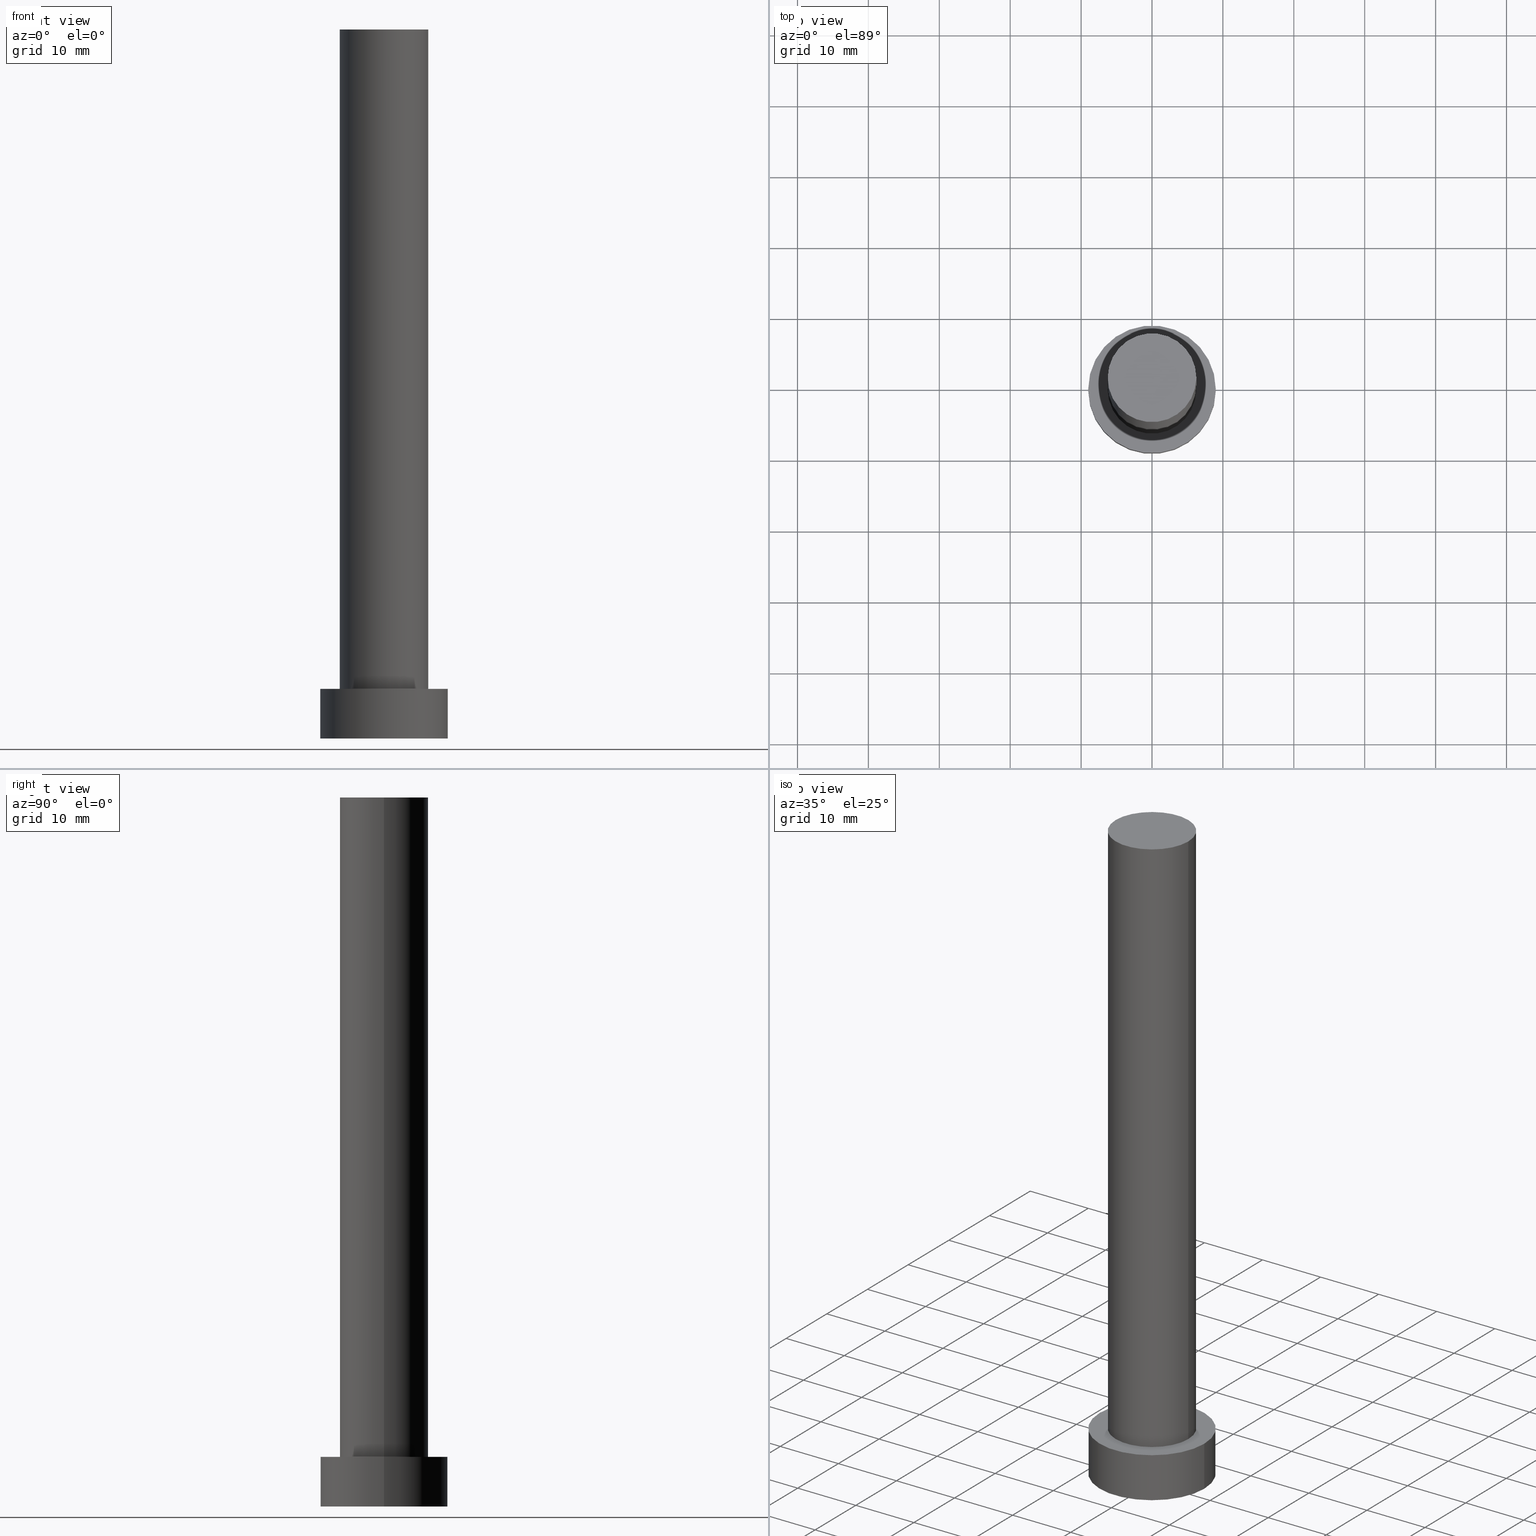
[diagram: canonical four-view strip — front | top / right | iso, engineering-drawing reading convention]
A machine part, canonical four-view strip (front | top / right | iso — engineering-drawing reading convention). The complete STEP part file that produces these views, byte-faithful:
ISO-10303-21;
HEADER;
FILE_DESCRIPTION (( 'STEP AP203' ),
    '1' );
FILE_NAME ('fa70.STEP',
    '2026-02-06T12:36:46',
    ( '' ),
    ( '' ),
    'SwSTEP 2.0',
    'SolidWorks 2019',
    '' );
FILE_SCHEMA (( 'CONFIG_CONTROL_DESIGN' ));
ENDSEC;

DATA;
#1 = PRODUCT_DEFINITION ( 'NEZN�M�', '', #123, #157 ) ;
#2 = LINE ( 'NONE', #50, #232 ) ;
#3 = PLANE ( 'NONE',  #205 ) ;
#4 = AXIS2_PLACEMENT_3D ( 'NONE', #80, #95, #75 ) ;
#5 = CLOSED_SHELL ( 'NONE', ( #77, #118, #25, #199, #188, #167, #101 ) ) ;
#6 = PERSON_AND_ORGANIZATION_ROLE ( 'design_owner' ) ;
#7 = PERSON_AND_ORGANIZATION ( #182, #223 ) ;
#8 = DIRECTION ( 'NONE',  ( -0.000000000000000000, -0.000000000000000000, -1.000000000000000000 ) ) ;
#9 = CYLINDRICAL_SURFACE ( 'NONE', #138, 9.000000000000000000 ) ;
#10 = APPLICATION_CONTEXT ( 'configuration controlled 3d designs of mechanical parts and assemblies' ) ;
#11 = APPROVAL_STATUS ( 'not_yet_approved' ) ;
#12 = PRODUCT ( 'fa70', 'fa70', '', ( #62 ) ) ;
#13 = ORIENTED_EDGE ( 'NONE', *, *, #15, .T. ) ;
#14 = EDGE_LOOP ( 'NONE', ( #81, #214 ) ) ;
#15 = EDGE_CURVE ( 'NONE', #245, #35, #69, .T. ) ;
#16 = CARTESIAN_POINT ( 'NONE',  ( -9.000000000000000000, 0.000000000000000000, 0.000000000000000000 ) ) ;
#17 = EDGE_LOOP ( 'NONE', ( #115, #13, #229, #135 ) ) ;
#18 = ORIENTED_EDGE ( 'NONE', *, *, #230, .F. ) ;
#19 = APPROVAL_PERSON_ORGANIZATION ( #226, #195, #227 ) ;
#20 = DIRECTION ( 'NONE',  ( 0.000000000000000000, 0.000000000000000000, 1.000000000000000000 ) ) ;
#21 = CARTESIAN_POINT ( 'NONE',  ( 0.000000000000000000, 0.000000000000000000, 7.000000000000000000 ) ) ;
#22 = APPLICATION_CONTEXT ( 'configuration controlled 3d designs of mechanical parts and assemblies' ) ;
#23 = DIRECTION ( 'NONE',  ( -0.000000000000000000, -0.000000000000000000, -1.000000000000000000 ) ) ;
#24 = DATE_AND_TIME ( #240, #191 ) ;
#25 = ADVANCED_FACE ( 'NONE', ( #110 ), #9, .T. ) ;
#26 = AXIS2_PLACEMENT_3D ( 'NONE', #234, #233, #159 ) ;
#27 = CARTESIAN_POINT ( 'NONE',  ( -6.250000000000000000, 0.000000000000000000, 100.0000000000000000 ) ) ;
#28 = PERSON_AND_ORGANIZATION ( #182, #223 ) ;
#29 =( GEOMETRIC_REPRESENTATION_CONTEXT ( 3 ) GLOBAL_UNCERTAINTY_ASSIGNED_CONTEXT ( ( #242 ) ) GLOBAL_UNIT_ASSIGNED_CONTEXT ( ( #222, #184, #79 ) ) REPRESENTATION_CONTEXT ( 'NONE', 'WORKASPACE' ) );
#30 = AXIS2_PLACEMENT_3D ( 'NONE', #255, #45, #231 ) ;
#31 = VECTOR ( 'NONE', #49, 1000.000000000000000 ) ;
#32 = ORIENTED_EDGE ( 'NONE', *, *, #82, .F. ) ;
#33 = APPLICATION_PROTOCOL_DEFINITION ( 'international standard', 'config_control_design', 1994, #10 ) ;
#34 = LOCAL_TIME ( 13, 36, 46.00000000000000000, #152 ) ;
#35 = VERTEX_POINT ( 'NONE', #104 ) ;
#36 = EDGE_CURVE ( 'NONE', #190, #245, #103, .T. ) ;
#37 = DIRECTION ( 'NONE',  ( 0.000000000000000000, 0.000000000000000000, 1.000000000000000000 ) ) ;
#38 = CARTESIAN_POINT ( 'NONE',  ( 0.000000000000000000, 0.000000000000000000, 0.000000000000000000 ) ) ;
#39 = CC_DESIGN_APPROVAL ( #106, ( #1 ) ) ;
#40 = AXIS2_PLACEMENT_3D ( 'NONE', #21, #140, #86 ) ;
#41 = DIRECTION ( 'NONE',  ( -1.000000000000000000, 0.000000000000000000, 0.000000000000000000 ) ) ;
#42 = EDGE_CURVE ( 'NONE', #251, #35, #99, .T. ) ;
#43 = CC_DESIGN_SECURITY_CLASSIFICATION ( #66, ( #123 ) ) ;
#44 = AXIS2_PLACEMENT_3D ( 'NONE', #88, #47, #121 ) ;
#45 = DIRECTION ( 'NONE',  ( -0.000000000000000000, -0.000000000000000000, -1.000000000000000000 ) ) ;
#46 = CARTESIAN_POINT ( 'NONE',  ( 6.250000000000000000, 7.654042494670955634E-16, 100.0000000000000000 ) ) ;
#47 = DIRECTION ( 'NONE',  ( 0.000000000000000000, 0.000000000000000000, 1.000000000000000000 ) ) ;
#48 = DIRECTION ( 'NONE',  ( 0.000000000000000000, 0.000000000000000000, 1.000000000000000000 ) ) ;
#49 = DIRECTION ( 'NONE',  ( -0.000000000000000000, -0.000000000000000000, -1.000000000000000000 ) ) ;
#50 = CARTESIAN_POINT ( 'NONE',  ( -6.250000000000000000, 0.000000000000000000, 100.0000000000000000 ) ) ;
#51 = PERSON_AND_ORGANIZATION ( #182, #223 ) ;
#52 = DIRECTION ( 'NONE',  ( -0.000000000000000000, -0.000000000000000000, -1.000000000000000000 ) ) ;
#53 = APPROVAL_ROLE ( '' ) ;
#54 = CYLINDRICAL_SURFACE ( 'NONE', #196, 6.250000000000000000 ) ;
#55 = EDGE_CURVE ( 'NONE', #125, #178, #65, .T. ) ;
#56 = SHAPE_DEFINITION_REPRESENTATION ( #187, #247 ) ;
#57 = LOCAL_TIME ( 13, 36, 46.00000000000000000, #203 ) ;
#58 = AXIS2_PLACEMENT_3D ( 'NONE', #59, #61, #133 ) ;
#59 = CARTESIAN_POINT ( 'NONE',  ( 0.000000000000000000, 0.000000000000000000, 7.000000000000000000 ) ) ;
#60 = EDGE_LOOP ( 'NONE', ( #194, #173, #129, #63 ) ) ;
#61 = DIRECTION ( 'NONE',  ( 0.000000000000000000, 0.000000000000000000, 1.000000000000000000 ) ) ;
#62 = MECHANICAL_CONTEXT ( 'NONE', #10, 'mechanical' ) ;
#63 = ORIENTED_EDGE ( 'NONE', *, *, #82, .T. ) ;
#64 = ORIENTED_EDGE ( 'NONE', *, *, #42, .T. ) ;
#65 = CIRCLE ( 'NONE', #78, 9.000000000000000000 ) ;
#66 = SECURITY_CLASSIFICATION ( '', '', #112 ) ;
#67 = DIRECTION ( 'NONE',  ( 1.000000000000000000, 0.000000000000000000, -0.000000000000000000 ) ) ;
#68 = CALENDAR_DATE ( 2026, 6, 2 ) ;
#69 = LINE ( 'NONE', #185, #248 ) ;
#70 = PERSON_AND_ORGANIZATION_ROLE ( 'classification_officer' ) ;
#71 = CARTESIAN_POINT ( 'NONE',  ( 0.000000000000000000, 0.000000000000000000, 7.000000000000000000 ) ) ;
#72 = APPROVAL_DATE_TIME ( #149, #106 ) ;
#73 = DATE_AND_TIME ( #109, #146 ) ;
#74 = PRODUCT_RELATED_PRODUCT_CATEGORY ( 'detail', '', ( #12 ) ) ;
#75 = DIRECTION ( 'NONE',  ( 1.000000000000000000, 0.000000000000000000, -0.000000000000000000 ) ) ;
#76 = VERTEX_POINT ( 'NONE', #139 ) ;
#77 = ADVANCED_FACE ( 'NONE', ( #254 ), #119, .T. ) ;
#78 = AXIS2_PLACEMENT_3D ( 'NONE', #144, #160, #201 ) ;
#79 =( NAMED_UNIT ( * ) SI_UNIT ( $, .STERADIAN. ) SOLID_ANGLE_UNIT ( ) );
#80 = CARTESIAN_POINT ( 'NONE',  ( 0.000000000000000000, 0.000000000000000000, 7.000000000000000000 ) ) ;
#81 = ORIENTED_EDGE ( 'NONE', *, *, #42, .F. ) ;
#82 = EDGE_CURVE ( 'NONE', #212, #76, #165, .T. ) ;
#83 = VECTOR ( 'NONE', #145, 1000.000000000000000 ) ;
#84 = EDGE_LOOP ( 'NONE', ( #32, #96 ) ) ;
#85 = CARTESIAN_POINT ( 'NONE',  ( 0.000000000000000000, 0.000000000000000000, 100.0000000000000000 ) ) ;
#86 = DIRECTION ( 'NONE',  ( 1.000000000000000000, 0.000000000000000000, 0.000000000000000000 ) ) ;
#87 = APPROVAL_PERSON_ORGANIZATION ( #150, #117, #53 ) ;
#88 = CARTESIAN_POINT ( 'NONE',  ( 0.000000000000000000, 0.000000000000000000, 100.0000000000000000 ) ) ;
#89 = DATE_AND_TIME ( #68, #57 ) ;
#90 = DIRECTION ( 'NONE',  ( -1.000000000000000000, 0.000000000000000000, 0.000000000000000000 ) ) ;
#91 = APPLICATION_PROTOCOL_DEFINITION ( 'international standard', 'config_control_design', 1994, #22 ) ;
#92 = CARTESIAN_POINT ( 'NONE',  ( 0.000000000000000000, 0.000000000000000000, 100.0000000000000000 ) ) ;
#93 = APPROVAL_STATUS ( 'not_yet_approved' ) ;
#94 = DATE_TIME_ROLE ( 'classification_date' ) ;
#95 = DIRECTION ( 'NONE',  ( 0.000000000000000000, 0.000000000000000000, 1.000000000000000000 ) ) ;
#96 = ORIENTED_EDGE ( 'NONE', *, *, #122, .F. ) ;
#97 = EDGE_LOOP ( 'NONE', ( #155, #193 ) ) ;
#98 = CC_DESIGN_PERSON_AND_ORGANIZATION_ASSIGNMENT ( #51, #237, ( #123 ) ) ;
#99 = CIRCLE ( 'NONE', #40, 6.250000000000000000 ) ;
#100 = EDGE_LOOP ( 'NONE', ( #127, #174, #228, #18 ) ) ;
#101 = ADVANCED_FACE ( 'NONE', ( #108 ), #105, .T. ) ;
#102 = ORIENTED_EDGE ( 'NONE', *, *, #126, .T. ) ;
#103 = CIRCLE ( 'NONE', #26, 6.250000000000000000 ) ;
#104 = CARTESIAN_POINT ( 'NONE',  ( 6.250000000000000000, 7.654042494670955634E-16, 7.000000000000000000 ) ) ;
#105 = PLANE ( 'NONE',  #197 ) ;
#106 = APPROVAL ( #116, 'NEUR�EN�' ) ;
#107 = DIRECTION ( 'NONE',  ( 1.000000000000000000, 0.000000000000000000, 0.000000000000000000 ) ) ;
#108 = FACE_OUTER_BOUND ( 'NONE', #97, .T. ) ;
#109 = CALENDAR_DATE ( 2026, 6, 2 ) ;
#110 = FACE_OUTER_BOUND ( 'NONE', #60, .T. ) ;
#111 = EDGE_CURVE ( 'NONE', #245, #190, #158, .T. ) ;
#112 = SECURITY_CLASSIFICATION_LEVEL ( 'unclassified' ) ;
#113 = APPROVAL_DATE_TIME ( #73, #117 ) ;
#114 = ORIENTED_EDGE ( 'NONE', *, *, #15, .F. ) ;
#115 = ORIENTED_EDGE ( 'NONE', *, *, #111, .F. ) ;
#116 = APPROVAL_STATUS ( 'not_yet_approved' ) ;
#117 = APPROVAL ( #11, 'NEUR�EN�' ) ;
#118 = ADVANCED_FACE ( 'NONE', ( #166 ), #181, .T. ) ;
#119 = CYLINDRICAL_SURFACE ( 'NONE', #130, 6.250000000000000000 ) ;
#120 = DIRECTION ( 'NONE',  ( -1.000000000000000000, 0.000000000000000000, 0.000000000000000000 ) ) ;
#121 = DIRECTION ( 'NONE',  ( 1.000000000000000000, 0.000000000000000000, 0.000000000000000000 ) ) ;
#122 = EDGE_CURVE ( 'NONE', #76, #212, #142, .T. ) ;
#123 = PRODUCT_DEFINITION_FORMATION_WITH_SPECIFIED_SOURCE ( 'LIBOVOLN�', '', #12, .NOT_KNOWN. ) ;
#124 = DIRECTION ( 'NONE',  ( 0.000000000000000000, 0.000000000000000000, 1.000000000000000000 ) ) ;
#125 = VERTEX_POINT ( 'NONE', #164 ) ;
#126 = EDGE_CURVE ( 'NONE', #178, #125, #246, .T. ) ;
#127 = ORIENTED_EDGE ( 'NONE', *, *, #126, .F. ) ;
#128 = FACE_OUTER_BOUND ( 'NONE', #210, .T. ) ;
#129 = ORIENTED_EDGE ( 'NONE', *, *, #230, .T. ) ;
#130 = AXIS2_PLACEMENT_3D ( 'NONE', #217, #23, #120 ) ;
#131 = CARTESIAN_POINT ( 'NONE',  ( -9.000000000000000000, 0.000000000000000000, 7.000000000000000000 ) ) ;
#132 = EDGE_LOOP ( 'NONE', ( #249, #102 ) ) ;
#133 = DIRECTION ( 'NONE',  ( 1.000000000000000000, 0.000000000000000000, 0.000000000000000000 ) ) ;
#134 = ORIENTED_EDGE ( 'NONE', *, *, #36, .F. ) ;
#135 = ORIENTED_EDGE ( 'NONE', *, *, #161, .F. ) ;
#136 = PERSON_AND_ORGANIZATION ( #182, #223 ) ;
#137 = CC_DESIGN_PERSON_AND_ORGANIZATION_ASSIGNMENT ( #224, #206, ( #123 ) ) ;
#138 = AXIS2_PLACEMENT_3D ( 'NONE', #71, #221, #41 ) ;
#139 = CARTESIAN_POINT ( 'NONE',  ( 9.000000000000000000, 1.102182119232617714E-15, 0.000000000000000000 ) ) ;
#140 = DIRECTION ( 'NONE',  ( 0.000000000000000000, 0.000000000000000000, 1.000000000000000000 ) ) ;
#141 = AXIS2_PLACEMENT_3D ( 'NONE', #176, #37, #156 ) ;
#142 = CIRCLE ( 'NONE', #192, 9.000000000000000000 ) ;
#143 = AXIS2_PLACEMENT_3D ( 'NONE', #235, #48, #183 ) ;
#144 = CARTESIAN_POINT ( 'NONE',  ( 0.000000000000000000, 0.000000000000000000, 7.000000000000000000 ) ) ;
#145 = DIRECTION ( 'NONE',  ( -0.000000000000000000, -0.000000000000000000, -1.000000000000000000 ) ) ;
#146 = LOCAL_TIME ( 13, 36, 46.00000000000000000, #147 ) ;
#147 = COORDINATED_UNIVERSAL_TIME_OFFSET ( 1, 0, .AHEAD. ) ;
#148 = CARTESIAN_POINT ( 'NONE',  ( 9.000000000000000000, 1.102182119232617714E-15, 7.000000000000000000 ) ) ;
#149 = DATE_AND_TIME ( #215, #151 ) ;
#150 = PERSON_AND_ORGANIZATION ( #182, #223 ) ;
#151 = LOCAL_TIME ( 13, 36, 46.00000000000000000, #253 ) ;
#152 = COORDINATED_UNIVERSAL_TIME_OFFSET ( 1, 0, .AHEAD. ) ;
#153 = LINE ( 'NONE', #131, #31 ) ;
#154 = CIRCLE ( 'NONE', #58, 6.250000000000000000 ) ;
#155 = ORIENTED_EDGE ( 'NONE', *, *, #36, .T. ) ;
#156 = DIRECTION ( 'NONE',  ( 1.000000000000000000, 0.000000000000000000, 0.000000000000000000 ) ) ;
#157 = DESIGN_CONTEXT ( 'detailed design', #22, 'design' ) ;
#158 = CIRCLE ( 'NONE', #44, 6.250000000000000000 ) ;
#159 = DIRECTION ( 'NONE',  ( 1.000000000000000000, 0.000000000000000000, 0.000000000000000000 ) ) ;
#160 = DIRECTION ( 'NONE',  ( 0.000000000000000000, 0.000000000000000000, 1.000000000000000000 ) ) ;
#161 = EDGE_CURVE ( 'NONE', #190, #251, #2, .T. ) ;
#162 = MANIFOLD_SOLID_BREP ( 'P�idat vysunut�m3', #5 ) ;
#163 = DIRECTION ( 'NONE',  ( 0.000000000000000000, 0.000000000000000000, 1.000000000000000000 ) ) ;
#164 = CARTESIAN_POINT ( 'NONE',  ( -9.000000000000000000, 0.000000000000000000, 7.000000000000000000 ) ) ;
#165 = CIRCLE ( 'NONE', #236, 9.000000000000000000 ) ;
#166 = FACE_OUTER_BOUND ( 'NONE', #100, .T. ) ;
#167 = ADVANCED_FACE ( 'NONE', ( #128 ), #54, .T. ) ;
#168 = DATE_AND_TIME ( #209, #34 ) ;
#169 = CARTESIAN_POINT ( 'NONE',  ( 9.000000000000000000, 1.102182119232617714E-15, 7.000000000000000000 ) ) ;
#170 = CARTESIAN_POINT ( 'NONE',  ( 0.000000000000000000, 0.000000000000000000, 0.000000000000000000 ) ) ;
#171 = DATE_TIME_ROLE ( 'creation_date' ) ;
#172 = APPROVAL_DATE_TIME ( #24, #195 ) ;
#173 = ORIENTED_EDGE ( 'NONE', *, *, #55, .F. ) ;
#174 = ORIENTED_EDGE ( 'NONE', *, *, #243, .T. ) ;
#175 = APPROVAL_PERSON_ORGANIZATION ( #28, #106, #218 ) ;
#176 = CARTESIAN_POINT ( 'NONE',  ( 0.000000000000000000, 0.000000000000000000, 0.000000000000000000 ) ) ;
#177 = CC_DESIGN_DATE_AND_TIME_ASSIGNMENT ( #168, #171, ( #1 ) ) ;
#178 = VERTEX_POINT ( 'NONE', #148 ) ;
#179 = DIRECTION ( 'NONE',  ( 0.000000000000000000, 0.000000000000000000, 1.000000000000000000 ) ) ;
#180 = CC_DESIGN_APPROVAL ( #117, ( #123 ) ) ;
#181 = CYLINDRICAL_SURFACE ( 'NONE', #30, 9.000000000000000000 ) ;
#182 = PERSON ( 'NEUR�EN�', 'NEUR�EN�', 'NEUR�EN�', ('NEUR�EN�'), ('NEUR�EN�'), ('NEUR�EN�') ) ;
#183 = DIRECTION ( 'NONE',  ( 1.000000000000000000, 0.000000000000000000, 0.000000000000000000 ) ) ;
#184 =( NAMED_UNIT ( * ) PLANE_ANGLE_UNIT ( ) SI_UNIT ( $, .RADIAN. ) );
#185 = CARTESIAN_POINT ( 'NONE',  ( 6.250000000000000000, 7.654042494670955634E-16, 100.0000000000000000 ) ) ;
#186 = FACE_BOUND ( 'NONE', #14, .T. ) ;
#187 = PRODUCT_DEFINITION_SHAPE ( 'NONE', 'NONE',  #1 ) ;
#188 = ADVANCED_FACE ( 'NONE', ( #198 ), #3, .F. ) ;
#189 = FACE_OUTER_BOUND ( 'NONE', #132, .T. ) ;
#190 = VERTEX_POINT ( 'NONE', #27 ) ;
#191 = LOCAL_TIME ( 13, 36, 46.00000000000000000, #244 ) ;
#192 = AXIS2_PLACEMENT_3D ( 'NONE', #38, #179, #252 ) ;
#193 = ORIENTED_EDGE ( 'NONE', *, *, #111, .T. ) ;
#194 = ORIENTED_EDGE ( 'NONE', *, *, #243, .F. ) ;
#195 = APPROVAL ( #93, 'NEUR�EN�' ) ;
#196 = AXIS2_PLACEMENT_3D ( 'NONE', #92, #241, #90 ) ;
#197 = AXIS2_PLACEMENT_3D ( 'NONE', #85, #163, #219 ) ;
#198 = FACE_OUTER_BOUND ( 'NONE', #84, .T. ) ;
#199 = ADVANCED_FACE ( 'NONE', ( #186, #189 ), #250, .T. ) ;
#200 = CARTESIAN_POINT ( 'NONE',  ( 0.000000000000000000, 0.000000000000000000, 0.000000000000000000 ) ) ;
#201 = DIRECTION ( 'NONE',  ( 1.000000000000000000, 0.000000000000000000, 0.000000000000000000 ) ) ;
#202 = LINE ( 'NONE', #169, #83 ) ;
#203 = COORDINATED_UNIVERSAL_TIME_OFFSET ( 1, 0, .AHEAD. ) ;
#204 = CARTESIAN_POINT ( 'NONE',  ( -6.250000000000000000, 0.000000000000000000, 7.000000000000000000 ) ) ;
#205 = AXIS2_PLACEMENT_3D ( 'NONE', #170, #124, #67 ) ;
#206 = PERSON_AND_ORGANIZATION_ROLE ( 'creator' ) ;
#207 = PERSON_AND_ORGANIZATION ( #182, #223 ) ;
#208 = ORIENTED_EDGE ( 'NONE', *, *, #161, .T. ) ;
#209 = CALENDAR_DATE ( 2026, 6, 2 ) ;
#210 = EDGE_LOOP ( 'NONE', ( #114, #134, #208, #64 ) ) ;
#211 = PERSON_AND_ORGANIZATION_ROLE ( 'creator' ) ;
#212 = VERTEX_POINT ( 'NONE', #16 ) ;
#213 = CC_DESIGN_PERSON_AND_ORGANIZATION_ASSIGNMENT ( #7, #70, ( #66 ) ) ;
#214 = ORIENTED_EDGE ( 'NONE', *, *, #225, .F. ) ;
#215 = CALENDAR_DATE ( 2026, 6, 2 ) ;
#216 = CC_DESIGN_DATE_AND_TIME_ASSIGNMENT ( #89, #94, ( #66 ) ) ;
#217 = CARTESIAN_POINT ( 'NONE',  ( 0.000000000000000000, 0.000000000000000000, 100.0000000000000000 ) ) ;
#218 = APPROVAL_ROLE ( '' ) ;
#219 = DIRECTION ( 'NONE',  ( 1.000000000000000000, 0.000000000000000000, -0.000000000000000000 ) ) ;
#220 = CC_DESIGN_PERSON_AND_ORGANIZATION_ASSIGNMENT ( #136, #211, ( #1 ) ) ;
#221 = DIRECTION ( 'NONE',  ( -0.000000000000000000, -0.000000000000000000, -1.000000000000000000 ) ) ;
#222 =( LENGTH_UNIT ( ) NAMED_UNIT ( * ) SI_UNIT ( .MILLI., .METRE. ) );
#223 = ORGANIZATION ( 'NEUR�EN�', 'NEUR�EN�', '' ) ;
#224 = PERSON_AND_ORGANIZATION ( #182, #223 ) ;
#225 = EDGE_CURVE ( 'NONE', #35, #251, #154, .T. ) ;
#226 = PERSON_AND_ORGANIZATION ( #182, #223 ) ;
#227 = APPROVAL_ROLE ( '' ) ;
#228 = ORIENTED_EDGE ( 'NONE', *, *, #122, .T. ) ;
#229 = ORIENTED_EDGE ( 'NONE', *, *, #225, .T. ) ;
#230 = EDGE_CURVE ( 'NONE', #125, #212, #153, .T. ) ;
#231 = DIRECTION ( 'NONE',  ( -1.000000000000000000, 0.000000000000000000, 0.000000000000000000 ) ) ;
#232 = VECTOR ( 'NONE', #8, 1000.000000000000000 ) ;
#233 = DIRECTION ( 'NONE',  ( 0.000000000000000000, 0.000000000000000000, 1.000000000000000000 ) ) ;
#234 = CARTESIAN_POINT ( 'NONE',  ( 0.000000000000000000, 0.000000000000000000, 100.0000000000000000 ) ) ;
#235 = CARTESIAN_POINT ( 'NONE',  ( 0.000000000000000000, 0.000000000000000000, 7.000000000000000000 ) ) ;
#236 = AXIS2_PLACEMENT_3D ( 'NONE', #200, #20, #107 ) ;
#237 = PERSON_AND_ORGANIZATION_ROLE ( 'design_supplier' ) ;
#238 = CC_DESIGN_PERSON_AND_ORGANIZATION_ASSIGNMENT ( #207, #6, ( #12 ) ) ;
#239 = CC_DESIGN_APPROVAL ( #195, ( #66 ) ) ;
#240 = CALENDAR_DATE ( 2026, 6, 2 ) ;
#241 = DIRECTION ( 'NONE',  ( -0.000000000000000000, -0.000000000000000000, -1.000000000000000000 ) ) ;
#242 = UNCERTAINTY_MEASURE_WITH_UNIT (LENGTH_MEASURE( 1.000000000000000082E-05 ), #222, 'distance_accuracy_value', 'NONE');
#243 = EDGE_CURVE ( 'NONE', #178, #76, #202, .T. ) ;
#244 = COORDINATED_UNIVERSAL_TIME_OFFSET ( 1, 0, .AHEAD. ) ;
#245 = VERTEX_POINT ( 'NONE', #46 ) ;
#246 = CIRCLE ( 'NONE', #143, 9.000000000000000000 ) ;
#247 = ADVANCED_BREP_SHAPE_REPRESENTATION ( 'fa70', ( #162, #141 ), #29 ) ;
#248 = VECTOR ( 'NONE', #52, 1000.000000000000000 ) ;
#249 = ORIENTED_EDGE ( 'NONE', *, *, #55, .T. ) ;
#250 = PLANE ( 'NONE',  #4 ) ;
#251 = VERTEX_POINT ( 'NONE', #204 ) ;
#252 = DIRECTION ( 'NONE',  ( 1.000000000000000000, 0.000000000000000000, 0.000000000000000000 ) ) ;
#253 = COORDINATED_UNIVERSAL_TIME_OFFSET ( 1, 0, .AHEAD. ) ;
#254 = FACE_OUTER_BOUND ( 'NONE', #17, .T. ) ;
#255 = CARTESIAN_POINT ( 'NONE',  ( 0.000000000000000000, 0.000000000000000000, 7.000000000000000000 ) ) ;
ENDSEC;
END-ISO-10303-21;
